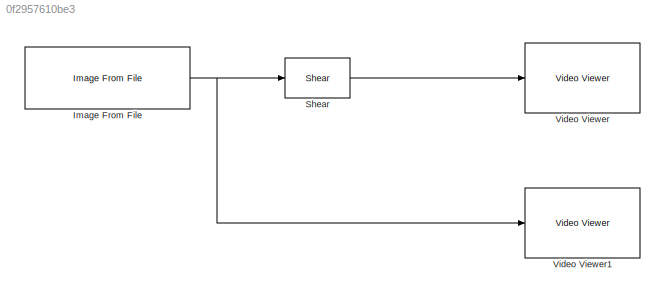
MODEL slx_0f2957610be3
KIND model
BLOCK [Reference] Image From File  REF=visionsources/Image From File
  FileName = Lena_256x256.bmp
  FractionLength = 15
  FractionLengthMode = User-defined
  ImageDataType = Inherit from input image
  OutPortLabels = R|G|B
  Ports = [0, 1]
  Signed = on
  SourceBlock = visionsources/Image From File
  SourceType = Image From File
  Tag = vipblks_nd
  Ts = inf
  WordLength = 16
  imagePorts = One multidimensional signal
  sdImageDataType = uint(8)
BLOCK [Reference] Shear  REF=visiongeotforms/Shear
  LockScale = off
  Ports = [1, 1]
  SourceBlock = visiongeotforms/Shear
  SourceType = Shear
  accumFracLength = 10
  accumMode = Same as product output
  accumWordLength = 32
  direction = Vertical
  fillVal = 0
  firstCoeffFracLength = 10
  firstCoeffMode = Same word length as input
  firstCoeffWordLength = 32
  interpMethod = Bicubic
  maxShear = 20
  outSizeS = Same as input image
  outputFracLength = 10
  outputMode = Same as first input
  outputWordLength = 32
  overflowMode = on
  prodOutputFracLength = 10
  prodOutputMode = Binary point scaling
  prodOutputWordLength = 32
  roundingMode = Nearest
  shear_values = [0 10]
  src_shear = Specify via dialog
BLOCK [Reference] Video Viewer  REF=visionsinks/Video Viewer
  AxisZoom = on
  DefaultConfigurationName = vipscopes.VideoViewerScopeCfg
  FigPos = [496 722 410 337]
  OpenAtMdlStart = on
  Ports = [1]
  SourceBlock = visionsinks/Video Viewer
  SourceType = Video Viewer
  UserDataPersistent = on
  colormapValue = gray(256)
  imagePorts = One multidimensional signal
  inputType = Obsolete7b
  maxInputVal = 255
  minInputVal = 0
  specRange = off
  trueSizedOnce = off
  useColorMap = off
BLOCK [Reference] Video Viewer1  REF=visionsinks/Video Viewer
  AxisZoom = on
  DefaultConfigurationName = vipscopes.VideoViewerScopeCfg
  FigPos = [96 695 410 300]
  OpenAtMdlStart = on
  Ports = [1]
  SourceBlock = visionsinks/Video Viewer
  SourceType = Video Viewer
  UserDataPersistent = on
  colormapValue = gray(256)
  imagePorts = One multidimensional signal
  inputType = Obsolete7b
  maxInputVal = 255
  minInputVal = 0
  specRange = off
  trueSizedOnce = off
  useColorMap = off
NET Image From File:1 -> Shear:1, Video Viewer1:1
LINE Shear:1 -> Video Viewer:1
note: NET lines group one-source signal fan-out (src -> all destinations, sorted); 1:1 wires keep LINE
